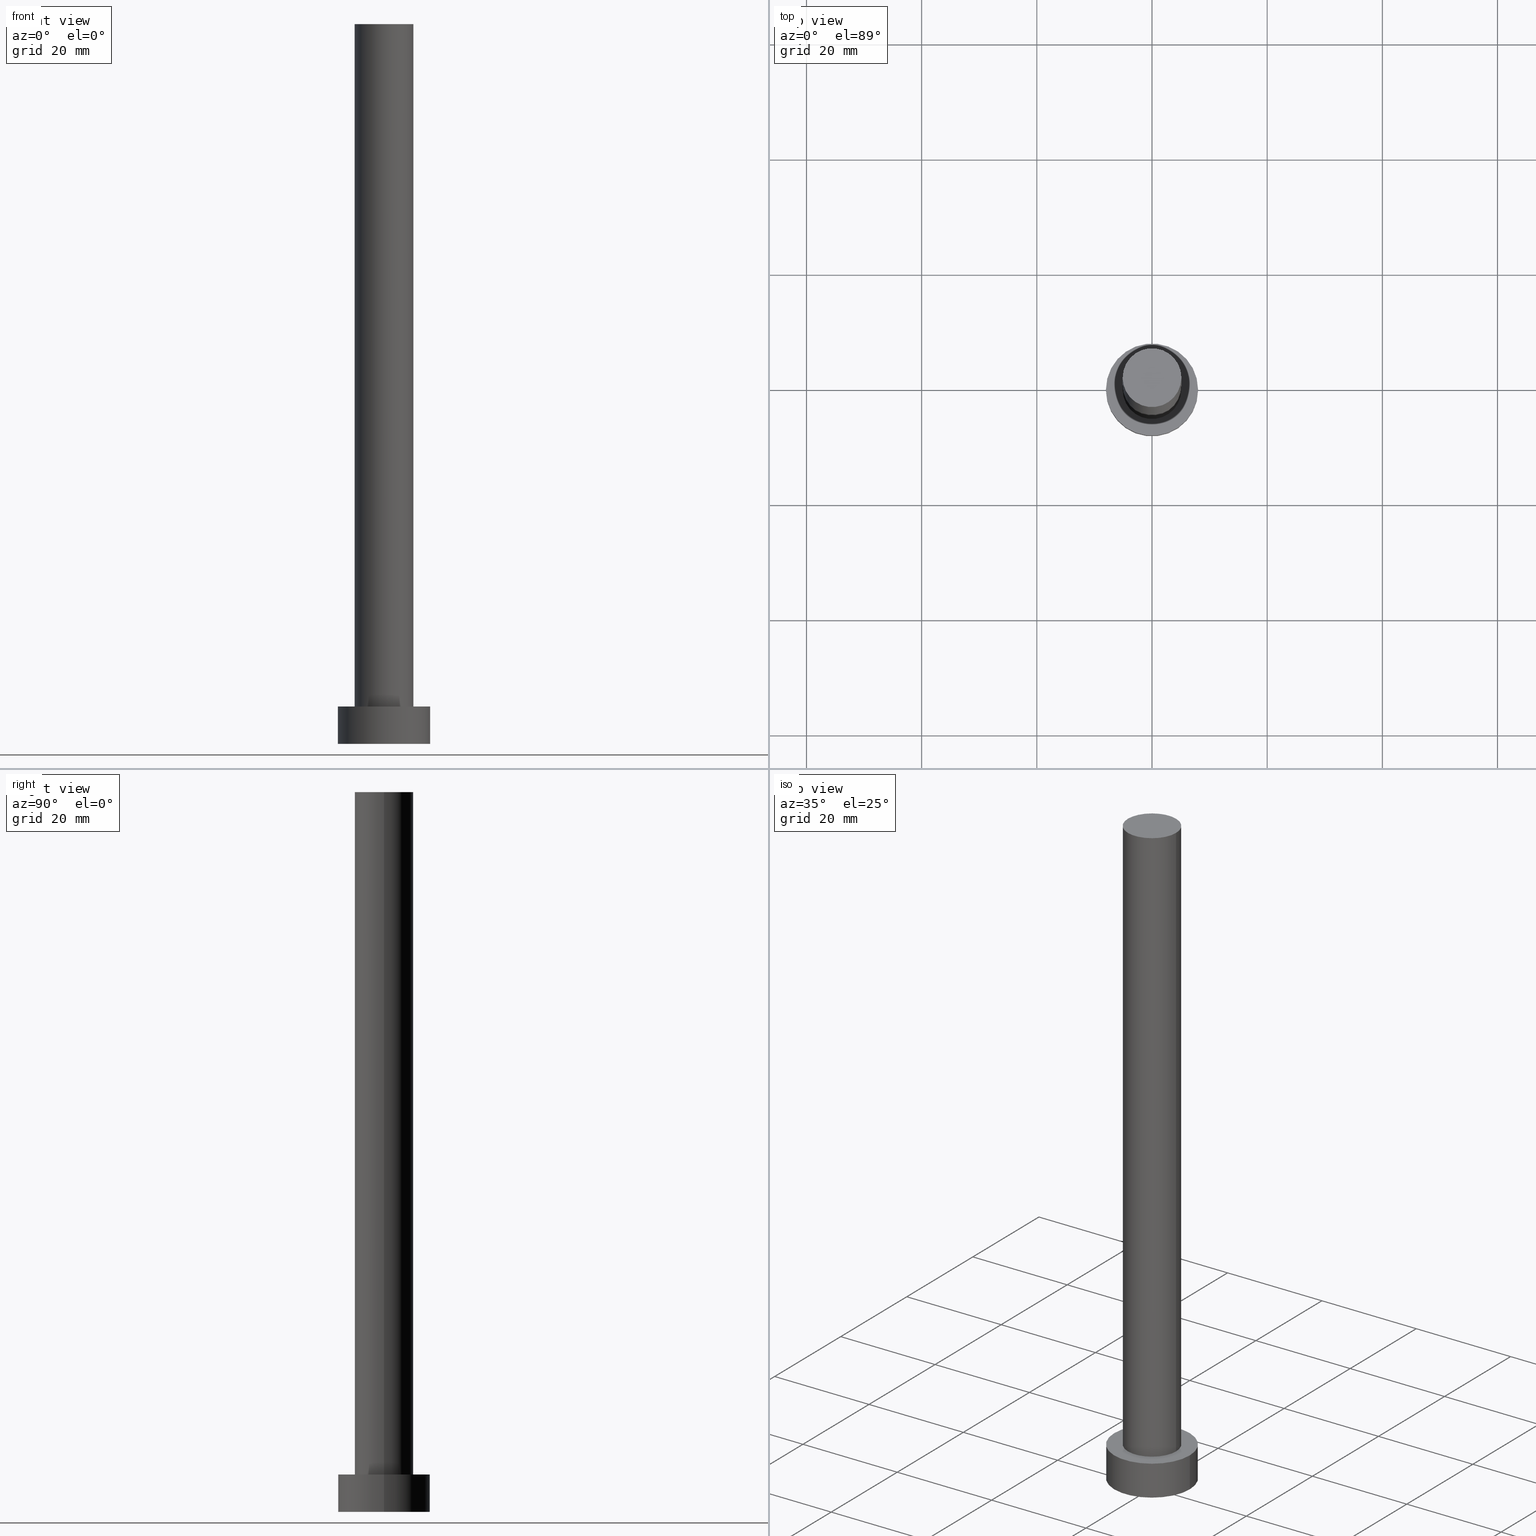
[diagram: canonical four-view strip — front | top / right | iso, engineering-drawing reading convention]
A machine part, canonical four-view strip (front | top / right | iso — engineering-drawing reading convention). The complete STEP part file that produces these views, byte-faithful:
ISO-10303-21;
HEADER;
FILE_DESCRIPTION (( 'STEP AP203' ),
    '1' );
FILE_NAME ('d6fd.STEP',
    '2023-02-13T13:07:28',
    ( '' ),
    ( '' ),
    'SwSTEP 2.0',
    'SolidWorks 2019',
    '' );
FILE_SCHEMA (( 'CONFIG_CONTROL_DESIGN' ));
ENDSEC;

DATA;
#1 = EDGE_CURVE ( 'NONE', #124, #168, #237, .T. ) ;
#2 = DIRECTION ( 'NONE',  ( -0.000000000000000000, -0.000000000000000000, -1.000000000000000000 ) ) ;
#3 =( GEOMETRIC_REPRESENTATION_CONTEXT ( 3 ) GLOBAL_UNCERTAINTY_ASSIGNED_CONTEXT ( ( #57 ) ) GLOBAL_UNIT_ASSIGNED_CONTEXT ( ( #232, #176, #214 ) ) REPRESENTATION_CONTEXT ( 'NONE', 'WORKASPACE' ) );
#4 = DATE_AND_TIME ( #183, #39 ) ;
#5 = PERSON_AND_ORGANIZATION ( #112, #133 ) ;
#6 = APPROVAL_DATE_TIME ( #217, #145 ) ;
#7 = EDGE_CURVE ( 'NONE', #184, #96, #202, .T. ) ;
#8 = AXIS2_PLACEMENT_3D ( 'NONE', #24, #19, #171 ) ;
#9 = CC_DESIGN_DATE_AND_TIME_ASSIGNMENT ( #44, #121, ( #65 ) ) ;
#10 = APPLICATION_CONTEXT ( 'configuration controlled 3d designs of mechanical parts and assemblies' ) ;
#11 = PERSON_AND_ORGANIZATION ( #112, #133 ) ;
#12 = CC_DESIGN_SECURITY_CLASSIFICATION ( #65, ( #228 ) ) ;
#13 = EDGE_LOOP ( 'NONE', ( #89, #38 ) ) ;
#14 = CIRCLE ( 'NONE', #186, 5.100000000000001421 ) ;
#15 = VERTEX_POINT ( 'NONE', #106 ) ;
#16 = EDGE_LOOP ( 'NONE', ( #86, #50 ) ) ;
#17 = ORIENTED_EDGE ( 'NONE', *, *, #209, .F. ) ;
#18 = ADVANCED_FACE ( 'NONE', ( #226 ), #74, .T. ) ;
#19 = DIRECTION ( 'NONE',  ( 0.000000000000000000, 0.000000000000000000, 1.000000000000000000 ) ) ;
#20 = FACE_OUTER_BOUND ( 'NONE', #45, .T. ) ;
#21 = CIRCLE ( 'NONE', #84, 5.100000000000001421 ) ;
#22 = CARTESIAN_POINT ( 'NONE',  ( -5.100000000000001421, 0.000000000000000000, 125.0000000000000000 ) ) ;
#23 = ADVANCED_BREP_SHAPE_REPRESENTATION ( 'd6fd', ( #122, #91 ), #3 ) ;
#24 = CARTESIAN_POINT ( 'NONE',  ( 0.000000000000000000, 0.000000000000000000, 0.000000000000000000 ) ) ;
#25 = APPROVAL_STATUS ( 'not_yet_approved' ) ;
#26 = CC_DESIGN_APPROVAL ( #62, ( #29 ) ) ;
#27 = ADVANCED_FACE ( 'NONE', ( #166 ), #146, .T. ) ;
#28 = APPROVAL_PERSON_ORGANIZATION ( #11, #149, #85 ) ;
#29 = PRODUCT_DEFINITION ( 'NEZN�M�', '', #228, #182 ) ;
#30 = ORIENTED_EDGE ( 'NONE', *, *, #76, .F. ) ;
#31 = PERSON_AND_ORGANIZATION_ROLE ( 'design_owner' ) ;
#32 = DIRECTION ( 'NONE',  ( 1.000000000000000000, 0.000000000000000000, 0.000000000000000000 ) ) ;
#33 = CC_DESIGN_APPROVAL ( #145, ( #65 ) ) ;
#34 = EDGE_LOOP ( 'NONE', ( #241, #235, #204, #87 ) ) ;
#35 = VECTOR ( 'NONE', #152, 1000.000000000000000 ) ;
#36 = DIRECTION ( 'NONE',  ( 1.000000000000000000, 0.000000000000000000, 0.000000000000000000 ) ) ;
#37 = CYLINDRICAL_SURFACE ( 'NONE', #109, 8.000000000000000000 ) ;
#38 = ORIENTED_EDGE ( 'NONE', *, *, #123, .T. ) ;
#39 = LOCAL_TIME ( 14, 7, 28.00000000000000000, #48 ) ;
#40 = DIRECTION ( 'NONE',  ( 1.000000000000000000, 0.000000000000000000, 0.000000000000000000 ) ) ;
#41 = CARTESIAN_POINT ( 'NONE',  ( -5.100000000000001421, 0.000000000000000000, 6.500000000000000000 ) ) ;
#42 = VECTOR ( 'NONE', #99, 1000.000000000000000 ) ;
#43 = DIRECTION ( 'NONE',  ( 1.000000000000000000, 0.000000000000000000, -0.000000000000000000 ) ) ;
#44 = DATE_AND_TIME ( #177, #154 ) ;
#45 = EDGE_LOOP ( 'NONE', ( #147, #94 ) ) ;
#46 = PERSON_AND_ORGANIZATION_ROLE ( 'creator' ) ;
#47 = AXIS2_PLACEMENT_3D ( 'NONE', #53, #127, #55 ) ;
#48 = COORDINATED_UNIVERSAL_TIME_OFFSET ( 1, 0, .AHEAD. ) ;
#49 = EDGE_LOOP ( 'NONE', ( #114, #193, #164, #70 ) ) ;
#50 = ORIENTED_EDGE ( 'NONE', *, *, #209, .T. ) ;
#51 = PERSON_AND_ORGANIZATION ( #112, #133 ) ;
#52 = CC_DESIGN_DATE_AND_TIME_ASSIGNMENT ( #4, #157, ( #29 ) ) ;
#53 = CARTESIAN_POINT ( 'NONE',  ( 0.000000000000000000, 0.000000000000000000, 6.500000000000000000 ) ) ;
#54 = APPROVAL_PERSON_ORGANIZATION ( #67, #145, #240 ) ;
#55 = DIRECTION ( 'NONE',  ( -1.000000000000000000, 0.000000000000000000, 0.000000000000000000 ) ) ;
#56 = DIRECTION ( 'NONE',  ( -0.000000000000000000, -0.000000000000000000, -1.000000000000000000 ) ) ;
#57 = UNCERTAINTY_MEASURE_WITH_UNIT (LENGTH_MEASURE( 1.000000000000000082E-05 ), #232, 'distance_accuracy_value', 'NONE');
#58 = CC_DESIGN_PERSON_AND_ORGANIZATION_ASSIGNMENT ( #205, #31, ( #239 ) ) ;
#59 = APPLICATION_PROTOCOL_DEFINITION ( 'international standard', 'config_control_design', 1994, #211 ) ;
#60 = LOCAL_TIME ( 14, 7, 28.00000000000000000, #90 ) ;
#61 = DIRECTION ( 'NONE',  ( 1.000000000000000000, 0.000000000000000000, 0.000000000000000000 ) ) ;
#62 = APPROVAL ( #139, 'NEUR�EN�' ) ;
#63 = DIRECTION ( 'NONE',  ( -0.000000000000000000, -0.000000000000000000, -1.000000000000000000 ) ) ;
#64 = DIRECTION ( 'NONE',  ( 0.000000000000000000, 0.000000000000000000, 1.000000000000000000 ) ) ;
#65 = SECURITY_CLASSIFICATION ( '', '', #244 ) ;
#66 = PLANE ( 'NONE',  #243 ) ;
#67 = PERSON_AND_ORGANIZATION ( #112, #133 ) ;
#68 = ORIENTED_EDGE ( 'NONE', *, *, #191, .T. ) ;
#69 = CALENDAR_DATE ( 2023, 13, 2 ) ;
#70 = ORIENTED_EDGE ( 'NONE', *, *, #101, .F. ) ;
#71 = PERSON_AND_ORGANIZATION_ROLE ( 'classification_officer' ) ;
#72 = DIRECTION ( 'NONE',  ( 1.000000000000000000, 0.000000000000000000, 0.000000000000000000 ) ) ;
#73 = DATE_AND_TIME ( #181, #60 ) ;
#74 = CYLINDRICAL_SURFACE ( 'NONE', #80, 5.100000000000001421 ) ;
#75 = EDGE_LOOP ( 'NONE', ( #159, #206, #158, #219 ) ) ;
#76 = EDGE_CURVE ( 'NONE', #225, #223, #14, .T. ) ;
#77 = CARTESIAN_POINT ( 'NONE',  ( -8.000000000000000000, 0.000000000000000000, 6.500000000000000000 ) ) ;
#78 = DIRECTION ( 'NONE',  ( 1.000000000000000000, 0.000000000000000000, -0.000000000000000000 ) ) ;
#79 = LINE ( 'NONE', #212, #254 ) ;
#80 = AXIS2_PLACEMENT_3D ( 'NONE', #148, #187, #221 ) ;
#81 = DIRECTION ( 'NONE',  ( 1.000000000000000000, 0.000000000000000000, 0.000000000000000000 ) ) ;
#82 = CARTESIAN_POINT ( 'NONE',  ( 0.000000000000000000, 0.000000000000000000, 6.500000000000000000 ) ) ;
#83 = FACE_BOUND ( 'NONE', #125, .T. ) ;
#84 = AXIS2_PLACEMENT_3D ( 'NONE', #98, #64, #97 ) ;
#85 = APPROVAL_ROLE ( '' ) ;
#86 = ORIENTED_EDGE ( 'NONE', *, *, #230, .T. ) ;
#87 = ORIENTED_EDGE ( 'NONE', *, *, #1, .T. ) ;
#88 = CLOSED_SHELL ( 'NONE', ( #242, #27, #95, #213, #224, #18, #234 ) ) ;
#89 = ORIENTED_EDGE ( 'NONE', *, *, #7, .T. ) ;
#90 = COORDINATED_UNIVERSAL_TIME_OFFSET ( 1, 0, .AHEAD. ) ;
#91 = AXIS2_PLACEMENT_3D ( 'NONE', #203, #185, #103 ) ;
#92 = VERTEX_POINT ( 'NONE', #248 ) ;
#93 = APPROVAL_DATE_TIME ( #246, #62 ) ;
#94 = ORIENTED_EDGE ( 'NONE', *, *, #167, .F. ) ;
#95 = ADVANCED_FACE ( 'NONE', ( #208 ), #37, .T. ) ;
#96 = VERTEX_POINT ( 'NONE', #170 ) ;
#97 = DIRECTION ( 'NONE',  ( 1.000000000000000000, 0.000000000000000000, 0.000000000000000000 ) ) ;
#98 = CARTESIAN_POINT ( 'NONE',  ( 0.000000000000000000, 0.000000000000000000, 125.0000000000000000 ) ) ;
#99 = DIRECTION ( 'NONE',  ( -0.000000000000000000, -0.000000000000000000, -1.000000000000000000 ) ) ;
#100 = LINE ( 'NONE', #22, #35 ) ;
#101 = EDGE_CURVE ( 'NONE', #184, #124, #250, .T. ) ;
#102 = COORDINATED_UNIVERSAL_TIME_OFFSET ( 1, 0, .AHEAD. ) ;
#103 = DIRECTION ( 'NONE',  ( 1.000000000000000000, 0.000000000000000000, 0.000000000000000000 ) ) ;
#104 = AXIS2_PLACEMENT_3D ( 'NONE', #231, #63, #132 ) ;
#105 = COORDINATED_UNIVERSAL_TIME_OFFSET ( 1, 0, .AHEAD. ) ;
#106 = CARTESIAN_POINT ( 'NONE',  ( -5.100000000000001421, 0.000000000000000000, 125.0000000000000000 ) ) ;
#107 = PERSON_AND_ORGANIZATION ( #112, #133 ) ;
#108 = CIRCLE ( 'NONE', #192, 5.100000000000001421 ) ;
#109 = AXIS2_PLACEMENT_3D ( 'NONE', #113, #141, #190 ) ;
#110 = DIRECTION ( 'NONE',  ( 0.000000000000000000, 0.000000000000000000, 1.000000000000000000 ) ) ;
#111 = ORIENTED_EDGE ( 'NONE', *, *, #138, .F. ) ;
#112 = PERSON ( 'NEUR�EN�', 'NEUR�EN�', 'NEUR�EN�', ('NEUR�EN�'), ('NEUR�EN�'), ('NEUR�EN�') ) ;
#113 = CARTESIAN_POINT ( 'NONE',  ( 0.000000000000000000, 0.000000000000000000, 6.500000000000000000 ) ) ;
#114 = ORIENTED_EDGE ( 'NONE', *, *, #123, .F. ) ;
#115 = AXIS2_PLACEMENT_3D ( 'NONE', #229, #227, #81 ) ;
#116 = CARTESIAN_POINT ( 'NONE',  ( 0.000000000000000000, 0.000000000000000000, 125.0000000000000000 ) ) ;
#117 = PLANE ( 'NONE',  #173 ) ;
#118 = CARTESIAN_POINT ( 'NONE',  ( 0.000000000000000000, 0.000000000000000000, 0.000000000000000000 ) ) ;
#119 = CYLINDRICAL_SURFACE ( 'NONE', #104, 5.100000000000001421 ) ;
#120 = AXIS2_PLACEMENT_3D ( 'NONE', #128, #143, #32 ) ;
#121 = DATE_TIME_ROLE ( 'classification_date' ) ;
#122 = MANIFOLD_SOLID_BREP ( 'P�idat vysunut�m3', #88 ) ;
#123 = EDGE_CURVE ( 'NONE', #96, #184, #218, .T. ) ;
#124 = VERTEX_POINT ( 'NONE', #131 ) ;
#125 = EDGE_LOOP ( 'NONE', ( #30, #245 ) ) ;
#126 = AXIS2_PLACEMENT_3D ( 'NONE', #189, #110, #72 ) ;
#127 = DIRECTION ( 'NONE',  ( -0.000000000000000000, -0.000000000000000000, -1.000000000000000000 ) ) ;
#128 = CARTESIAN_POINT ( 'NONE',  ( 0.000000000000000000, 0.000000000000000000, 6.500000000000000000 ) ) ;
#129 = CARTESIAN_POINT ( 'NONE',  ( 0.000000000000000000, 0.000000000000000000, 6.500000000000000000 ) ) ;
#130 = LOCAL_TIME ( 14, 7, 28.00000000000000000, #105 ) ;
#131 = CARTESIAN_POINT ( 'NONE',  ( -8.000000000000000000, 0.000000000000000000, 0.000000000000000000 ) ) ;
#132 = DIRECTION ( 'NONE',  ( -1.000000000000000000, 0.000000000000000000, 0.000000000000000000 ) ) ;
#133 = ORGANIZATION ( 'NEUR�EN�', 'NEUR�EN�', '' ) ;
#134 = DIRECTION ( 'NONE',  ( 0.000000000000000000, 0.000000000000000000, 1.000000000000000000 ) ) ;
#135 = COORDINATED_UNIVERSAL_TIME_OFFSET ( 1, 0, .AHEAD. ) ;
#136 = APPROVAL_ROLE ( '' ) ;
#137 = LOCAL_TIME ( 14, 7, 28.00000000000000000, #135 ) ;
#138 = EDGE_CURVE ( 'NONE', #15, #225, #100, .T. ) ;
#139 = APPROVAL_STATUS ( 'not_yet_approved' ) ;
#140 = APPROVAL_PERSON_ORGANIZATION ( #198, #62, #136 ) ;
#141 = DIRECTION ( 'NONE',  ( -0.000000000000000000, -0.000000000000000000, -1.000000000000000000 ) ) ;
#142 = APPROVAL_STATUS ( 'not_yet_approved' ) ;
#143 = DIRECTION ( 'NONE',  ( 0.000000000000000000, 0.000000000000000000, 1.000000000000000000 ) ) ;
#144 = PERSON_AND_ORGANIZATION ( #112, #133 ) ;
#145 = APPROVAL ( #142, 'NEUR�EN�' ) ;
#146 = CYLINDRICAL_SURFACE ( 'NONE', #47, 8.000000000000000000 ) ;
#147 = ORIENTED_EDGE ( 'NONE', *, *, #1, .F. ) ;
#148 = CARTESIAN_POINT ( 'NONE',  ( 0.000000000000000000, 0.000000000000000000, 125.0000000000000000 ) ) ;
#149 = APPROVAL ( #25, 'NEUR�EN�' ) ;
#150 = DIRECTION ( 'NONE',  ( 0.000000000000000000, 0.000000000000000000, 1.000000000000000000 ) ) ;
#151 = AXIS2_PLACEMENT_3D ( 'NONE', #129, #210, #61 ) ;
#152 = DIRECTION ( 'NONE',  ( -0.000000000000000000, -0.000000000000000000, -1.000000000000000000 ) ) ;
#153 = CARTESIAN_POINT ( 'NONE',  ( 5.100000000000001421, 6.245698675651502811E-16, 6.500000000000000000 ) ) ;
#154 = LOCAL_TIME ( 14, 7, 28.00000000000000000, #102 ) ;
#155 = FACE_OUTER_BOUND ( 'NONE', #247, .T. ) ;
#156 = CIRCLE ( 'NONE', #8, 8.000000000000000000 ) ;
#157 = DATE_TIME_ROLE ( 'creation_date' ) ;
#158 = ORIENTED_EDGE ( 'NONE', *, *, #138, .T. ) ;
#159 = ORIENTED_EDGE ( 'NONE', *, *, #191, .F. ) ;
#160 = CC_DESIGN_PERSON_AND_ORGANIZATION_ASSIGNMENT ( #5, #163, ( #228 ) ) ;
#161 = APPROVAL_DATE_TIME ( #73, #149 ) ;
#162 = CARTESIAN_POINT ( 'NONE',  ( 0.000000000000000000, 0.000000000000000000, 6.500000000000000000 ) ) ;
#163 = PERSON_AND_ORGANIZATION_ROLE ( 'creator' ) ;
#164 = ORIENTED_EDGE ( 'NONE', *, *, #167, .T. ) ;
#165 = APPLICATION_PROTOCOL_DEFINITION ( 'international standard', 'config_control_design', 1994, #10 ) ;
#166 = FACE_OUTER_BOUND ( 'NONE', #49, .T. ) ;
#167 = EDGE_CURVE ( 'NONE', #168, #124, #156, .T. ) ;
#168 = VERTEX_POINT ( 'NONE', #215 ) ;
#169 = CC_DESIGN_APPROVAL ( #149, ( #228 ) ) ;
#170 = CARTESIAN_POINT ( 'NONE',  ( 8.000000000000000000, 9.797174393178823685E-16, 6.500000000000000000 ) ) ;
#171 = DIRECTION ( 'NONE',  ( 1.000000000000000000, 0.000000000000000000, 0.000000000000000000 ) ) ;
#172 = DIRECTION ( 'NONE',  ( 0.000000000000000000, 0.000000000000000000, 1.000000000000000000 ) ) ;
#173 = AXIS2_PLACEMENT_3D ( 'NONE', #82, #195, #175 ) ;
#174 = FACE_OUTER_BOUND ( 'NONE', #16, .T. ) ;
#175 = DIRECTION ( 'NONE',  ( 1.000000000000000000, 0.000000000000000000, -0.000000000000000000 ) ) ;
#176 =( NAMED_UNIT ( * ) PLANE_ANGLE_UNIT ( ) SI_UNIT ( $, .RADIAN. ) );
#177 = CALENDAR_DATE ( 2023, 13, 2 ) ;
#178 = AXIS2_PLACEMENT_3D ( 'NONE', #194, #172, #43 ) ;
#179 = CALENDAR_DATE ( 2023, 13, 2 ) ;
#180 = CC_DESIGN_PERSON_AND_ORGANIZATION_ASSIGNMENT ( #144, #222, ( #228 ) ) ;
#181 = CALENDAR_DATE ( 2023, 13, 2 ) ;
#182 = DESIGN_CONTEXT ( 'detailed design', #10, 'design' ) ;
#183 = CALENDAR_DATE ( 2023, 13, 2 ) ;
#184 = VERTEX_POINT ( 'NONE', #251 ) ;
#185 = DIRECTION ( 'NONE',  ( 0.000000000000000000, 0.000000000000000000, 1.000000000000000000 ) ) ;
#186 = AXIS2_PLACEMENT_3D ( 'NONE', #162, #207, #36 ) ;
#187 = DIRECTION ( 'NONE',  ( -0.000000000000000000, -0.000000000000000000, -1.000000000000000000 ) ) ;
#188 = CC_DESIGN_PERSON_AND_ORGANIZATION_ASSIGNMENT ( #107, #46, ( #29 ) ) ;
#189 = CARTESIAN_POINT ( 'NONE',  ( 0.000000000000000000, 0.000000000000000000, 0.000000000000000000 ) ) ;
#190 = DIRECTION ( 'NONE',  ( -1.000000000000000000, 0.000000000000000000, 0.000000000000000000 ) ) ;
#191 = EDGE_CURVE ( 'NONE', #92, #223, #197, .T. ) ;
#192 = AXIS2_PLACEMENT_3D ( 'NONE', #116, #134, #40 ) ;
#193 = ORIENTED_EDGE ( 'NONE', *, *, #196, .T. ) ;
#194 = CARTESIAN_POINT ( 'NONE',  ( 0.000000000000000000, 0.000000000000000000, 125.0000000000000000 ) ) ;
#195 = DIRECTION ( 'NONE',  ( 0.000000000000000000, 0.000000000000000000, 1.000000000000000000 ) ) ;
#196 = EDGE_CURVE ( 'NONE', #96, #168, #79, .T. ) ;
#197 = LINE ( 'NONE', #233, #42 ) ;
#198 = PERSON_AND_ORGANIZATION ( #112, #133 ) ;
#199 = VECTOR ( 'NONE', #56, 1000.000000000000000 ) ;
#200 = MECHANICAL_CONTEXT ( 'NONE', #211, 'mechanical' ) ;
#201 = PRODUCT_DEFINITION_SHAPE ( 'NONE', 'NONE',  #29 ) ;
#202 = CIRCLE ( 'NONE', #120, 8.000000000000000000 ) ;
#203 = CARTESIAN_POINT ( 'NONE',  ( 0.000000000000000000, 0.000000000000000000, 0.000000000000000000 ) ) ;
#204 = ORIENTED_EDGE ( 'NONE', *, *, #101, .T. ) ;
#205 = PERSON_AND_ORGANIZATION ( #112, #133 ) ;
#206 = ORIENTED_EDGE ( 'NONE', *, *, #230, .F. ) ;
#207 = DIRECTION ( 'NONE',  ( 0.000000000000000000, 0.000000000000000000, 1.000000000000000000 ) ) ;
#208 = FACE_OUTER_BOUND ( 'NONE', #34, .T. ) ;
#209 = EDGE_CURVE ( 'NONE', #92, #15, #108, .T. ) ;
#210 = DIRECTION ( 'NONE',  ( 0.000000000000000000, 0.000000000000000000, 1.000000000000000000 ) ) ;
#211 = APPLICATION_CONTEXT ( 'configuration controlled 3d designs of mechanical parts and assemblies' ) ;
#212 = CARTESIAN_POINT ( 'NONE',  ( 8.000000000000000000, 9.797174393178823685E-16, 6.500000000000000000 ) ) ;
#213 = ADVANCED_FACE ( 'NONE', ( #83, #252 ), #117, .T. ) ;
#214 =( NAMED_UNIT ( * ) SI_UNIT ( $, .STERADIAN. ) SOLID_ANGLE_UNIT ( ) );
#215 = CARTESIAN_POINT ( 'NONE',  ( 8.000000000000000000, 9.797174393178823685E-16, 0.000000000000000000 ) ) ;
#216 = PRODUCT_RELATED_PRODUCT_CATEGORY ( 'detail', '', ( #239 ) ) ;
#217 = DATE_AND_TIME ( #69, #137 ) ;
#218 = CIRCLE ( 'NONE', #151, 8.000000000000000000 ) ;
#219 = ORIENTED_EDGE ( 'NONE', *, *, #76, .T. ) ;
#220 = SHAPE_DEFINITION_REPRESENTATION ( #201, #23 ) ;
#221 = DIRECTION ( 'NONE',  ( -1.000000000000000000, 0.000000000000000000, 0.000000000000000000 ) ) ;
#222 = PERSON_AND_ORGANIZATION_ROLE ( 'design_supplier' ) ;
#223 = VERTEX_POINT ( 'NONE', #153 ) ;
#224 = ADVANCED_FACE ( 'NONE', ( #20 ), #66, .F. ) ;
#225 = VERTEX_POINT ( 'NONE', #41 ) ;
#226 = FACE_OUTER_BOUND ( 'NONE', #75, .T. ) ;
#227 = DIRECTION ( 'NONE',  ( 0.000000000000000000, 0.000000000000000000, 1.000000000000000000 ) ) ;
#228 = PRODUCT_DEFINITION_FORMATION_WITH_SPECIFIED_SOURCE ( 'LIBOVOLN�', '', #239, .NOT_KNOWN. ) ;
#229 = CARTESIAN_POINT ( 'NONE',  ( 0.000000000000000000, 0.000000000000000000, 6.500000000000000000 ) ) ;
#230 = EDGE_CURVE ( 'NONE', #15, #92, #21, .T. ) ;
#231 = CARTESIAN_POINT ( 'NONE',  ( 0.000000000000000000, 0.000000000000000000, 125.0000000000000000 ) ) ;
#232 =( LENGTH_UNIT ( ) NAMED_UNIT ( * ) SI_UNIT ( .MILLI., .METRE. ) );
#233 = CARTESIAN_POINT ( 'NONE',  ( 5.100000000000001421, 6.245698675651502811E-16, 125.0000000000000000 ) ) ;
#234 = ADVANCED_FACE ( 'NONE', ( #174 ), #255, .T. ) ;
#235 = ORIENTED_EDGE ( 'NONE', *, *, #7, .F. ) ;
#236 = EDGE_CURVE ( 'NONE', #223, #225, #249, .T. ) ;
#237 = CIRCLE ( 'NONE', #126, 8.000000000000000000 ) ;
#238 = ORIENTED_EDGE ( 'NONE', *, *, #236, .T. ) ;
#239 = PRODUCT ( 'd6fd', 'd6fd', '', ( #200 ) ) ;
#240 = APPROVAL_ROLE ( '' ) ;
#241 = ORIENTED_EDGE ( 'NONE', *, *, #196, .F. ) ;
#242 = ADVANCED_FACE ( 'NONE', ( #155 ), #119, .T. ) ;
#243 = AXIS2_PLACEMENT_3D ( 'NONE', #118, #150, #78 ) ;
#244 = SECURITY_CLASSIFICATION_LEVEL ( 'unclassified' ) ;
#245 = ORIENTED_EDGE ( 'NONE', *, *, #236, .F. ) ;
#246 = DATE_AND_TIME ( #179, #130 ) ;
#247 = EDGE_LOOP ( 'NONE', ( #17, #68, #238, #111 ) ) ;
#248 = CARTESIAN_POINT ( 'NONE',  ( 5.100000000000001421, 6.245698675651502811E-16, 125.0000000000000000 ) ) ;
#249 = CIRCLE ( 'NONE', #115, 5.100000000000001421 ) ;
#250 = LINE ( 'NONE', #77, #199 ) ;
#251 = CARTESIAN_POINT ( 'NONE',  ( -8.000000000000000000, 0.000000000000000000, 6.500000000000000000 ) ) ;
#252 = FACE_OUTER_BOUND ( 'NONE', #13, .T. ) ;
#253 = CC_DESIGN_PERSON_AND_ORGANIZATION_ASSIGNMENT ( #51, #71, ( #65 ) ) ;
#254 = VECTOR ( 'NONE', #2, 1000.000000000000000 ) ;
#255 = PLANE ( 'NONE',  #178 ) ;
ENDSEC;
END-ISO-10303-21;
